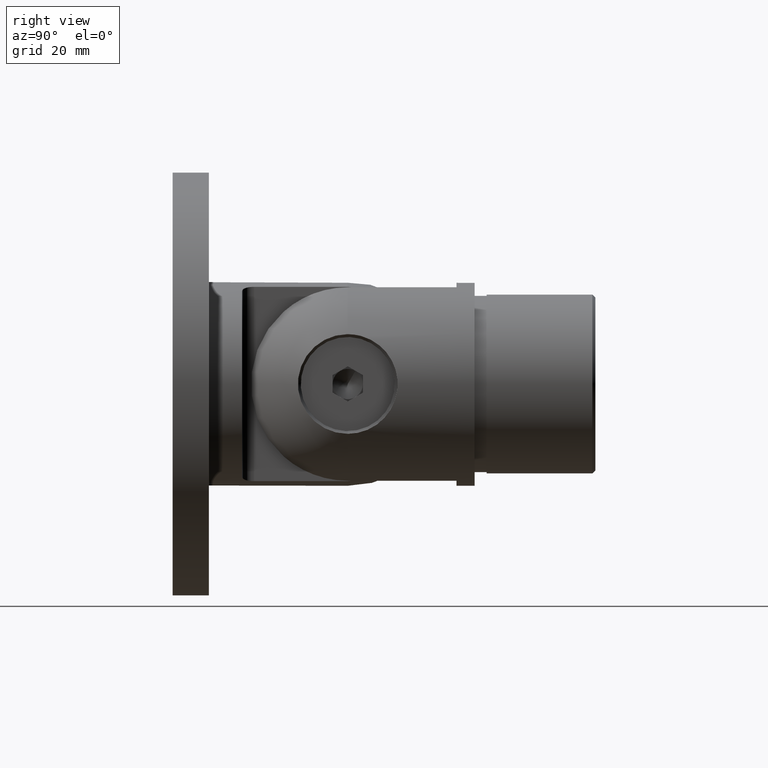
[diagram: clean part render]
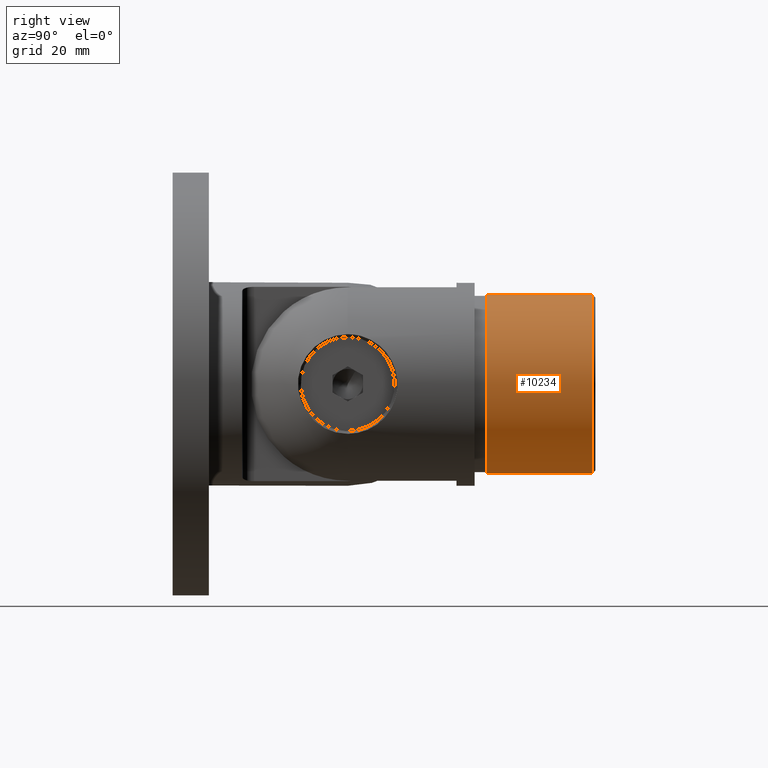
[diagram: same view with one face highlighted and labeled with its STEP entity id]
A machine part, right view. The second image highlights one B-rep face of the part: STEP entity #10234.
In plain terms, the highlighted cylindrical surface (bore or boss wall) has radius 14.8 mm, axis along (-0, -1, -0).
Its self-contained STEP definition (entity closure, byte-faithful):
#289 = DIRECTION ( 'NONE',  ( 0.000000000000000000, 1.000000000000000000, 0.000000000000000000 ) ) ;
#554 = AXIS2_PLACEMENT_3D ( 'NONE', #9204, #12963, #12913 ) ;
#1550 = EDGE_LOOP ( 'NONE', ( #7539 ) ) ;
#1866 = EDGE_CURVE ( 'NONE', #4689, #4689, #11678, .T. ) ;
#4017 = CARTESIAN_POINT ( 'NONE',  ( 0.000000000000000000, 57.85000000000001563, 0.000000000000000000 ) ) ;
#4064 = EDGE_LOOP ( 'NONE', ( #13666 ) ) ;
#4689 = VERTEX_POINT ( 'NONE', #13884 ) ;
#5256 = DIRECTION ( 'NONE',  ( -0.000000000000000000, -1.000000000000000000, -0.000000000000000000 ) ) ;
#6999 = AXIS2_PLACEMENT_3D ( 'NONE', #4017, #5256, #10044 ) ;
#7539 = ORIENTED_EDGE ( 'NONE', *, *, #9242, .T. ) ;
#8937 = VERTEX_POINT ( 'NONE', #9298 ) ;
#9030 = FACE_OUTER_BOUND ( 'NONE', #1550, .T. ) ;
#9204 = CARTESIAN_POINT ( 'NONE',  ( 0.000000000000000000, 57.35000000000000142, 0.000000000000000000 ) ) ;
#9242 = EDGE_CURVE ( 'NONE', #8937, #8937, #14409, .T. ) ;
#9298 = CARTESIAN_POINT ( 'NONE',  ( 0.000000000000000000, 57.35000000000000142, 14.80000000000000071 ) ) ;
#10044 = DIRECTION ( 'NONE',  ( 0.000000000000000000, 0.000000000000000000, -1.000000000000000000 ) ) ;
#10234 = ADVANCED_FACE ( 'NONE', ( #9030, #11319 ), #12641, .T. ) ;
#11319 = FACE_OUTER_BOUND ( 'NONE', #4064, .T. ) ;
#11678 = CIRCLE ( 'NONE', #15300, 14.80000000000000071 ) ;
#12641 = CYLINDRICAL_SURFACE ( 'NONE', #6999, 14.80000000000000071 ) ;
#12913 = DIRECTION ( 'NONE',  ( 0.000000000000000000, 0.000000000000000000, 1.000000000000000000 ) ) ;
#12963 = DIRECTION ( 'NONE',  ( 0.000000000000000000, -1.000000000000000000, 0.000000000000000000 ) ) ;
#13666 = ORIENTED_EDGE ( 'NONE', *, *, #1866, .T. ) ;
#13844 = CARTESIAN_POINT ( 'NONE',  ( 0.000000000000000000, 39.85000000000000853, 0.000000000000000000 ) ) ;
#13884 = CARTESIAN_POINT ( 'NONE',  ( 0.000000000000000000, 39.85000000000000853, 14.80000000000000071 ) ) ;
#14409 = CIRCLE ( 'NONE', #554, 14.80000000000000071 ) ;
#15082 = DIRECTION ( 'NONE',  ( 0.000000000000000000, 0.000000000000000000, 1.000000000000000000 ) ) ;
#15300 = AXIS2_PLACEMENT_3D ( 'NONE', #13844, #289, #15082 ) ;